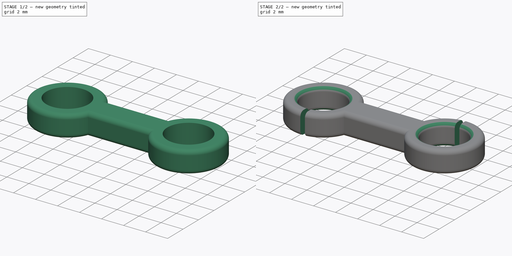
[diagram: build sequence overview — one tinted view per stage of 2, left to right]
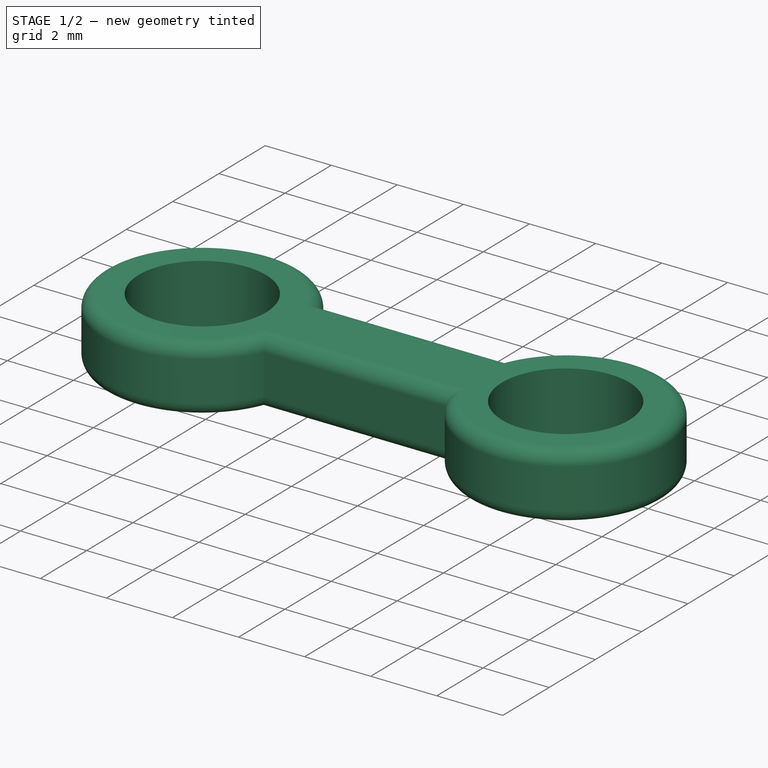
[diagram: stage 1 of 2 — iso view after this stage's code; geometry added in this stage tinted green]
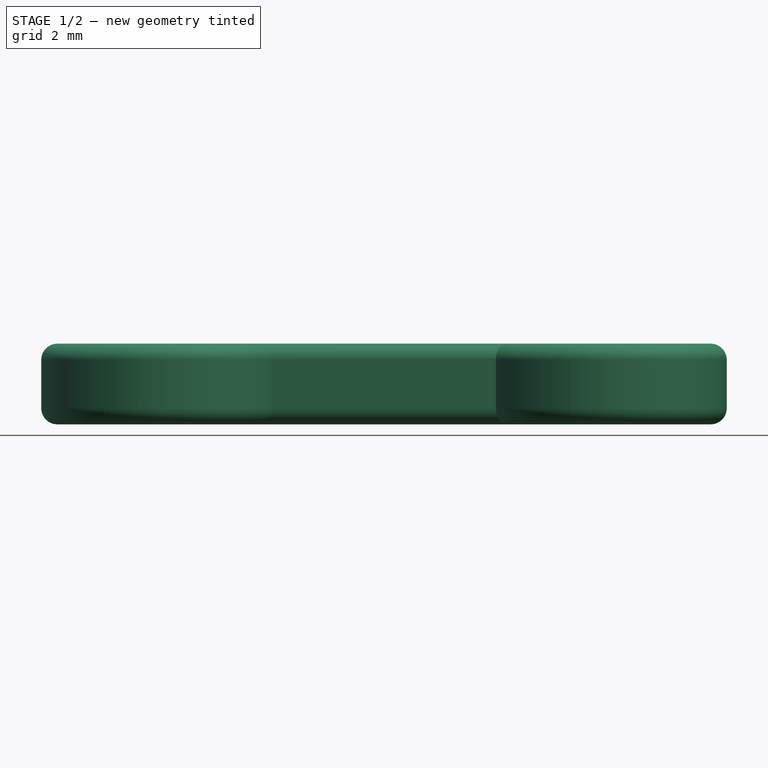
[diagram: stage 1 of 2 — front view after this stage's code; geometry added in this stage tinted green]
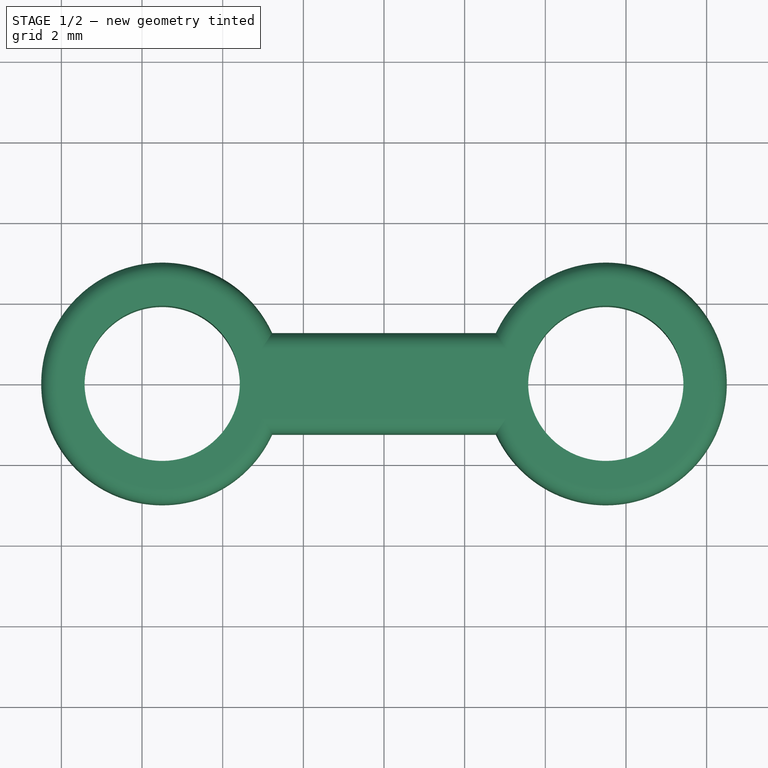
[diagram: stage 1 of 2 — top view after this stage's code; geometry added in this stage tinted green]
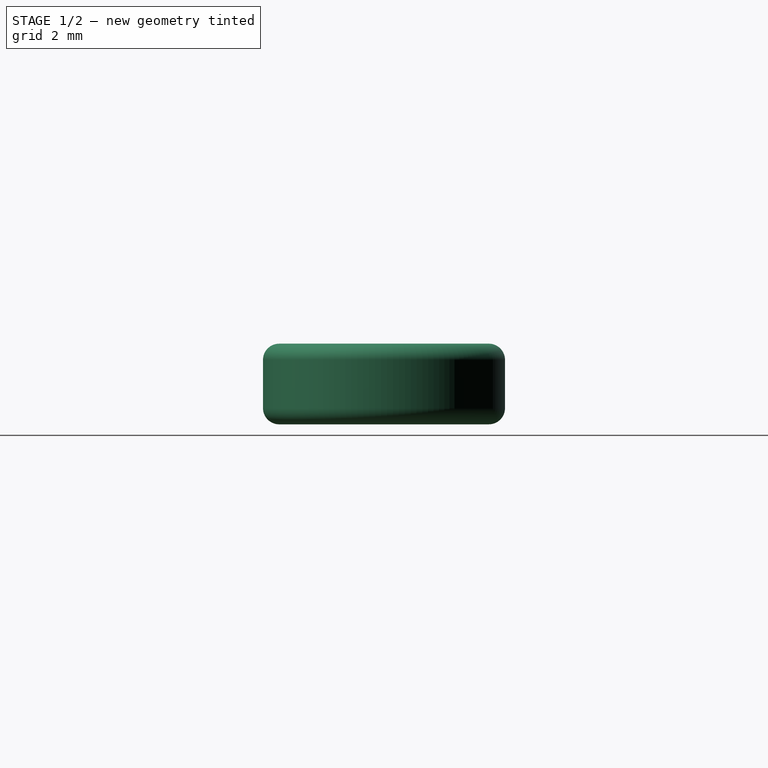
[diagram: stage 1 of 2 — right view after this stage's code; geometry added in this stage tinted green]
FCSTD DOCUMENT  (FreeCAD 1.0R39285 (Git))
Label: rc_helicopter
License: All rights reserved
objects: Sketcher::SketchObject×2, PartDesign::Fillet×2, App::VarSet×1, PartDesign::Pad×1, PartDesign::Pocket×1, PartDesign::Body×1
note: 17 computed .brp shape members not serialized (recipe doc carries the construction recipe); baked Part::Feature solids carry a one-line shape summary decoded from their .brp

FEATURE [Sketcher::SketchObject] Sketch
  ArcFitTolerance = 1e-06
  AttachmentSupport = -> [XY_Plane]
  FullyConstrained = true
  MakeInternals = false
  MapMode = 5
  expr: Constraints[13] = VarSet.centri
  expr: Constraints[14] = VarSet.centri / 2
  sketch-geometry (7):
    g0: LineSegment StartX=-2.77282 StartY=-1.25 StartZ=0 EndX=2.77282 EndY=-1.25 EndZ=0
    g1: LineSegment StartX=2.77282 StartY=1.25 StartZ=0 EndX=-2.77282 EndY=1.25 EndZ=0
    g2: GeomPoint [constr] X=0 Y=0 Z=0
    g3: ArcOfCircle CenterX=5.5 CenterY=0 CenterZ=0 NormalX=0 NormalY=0 NormalZ=1 AngleXU=0 Radius=3 StartAngle=3.57137 EndAngle=8.995
    g4: ArcOfCircle CenterX=-5.5 CenterY=0 CenterZ=0 NormalX=0 NormalY=0 NormalZ=1 AngleXU=0 Radius=3 StartAngle=0.429775 EndAngle=5.85341
    g5: Circle CenterX=-5.5 CenterY=0 CenterZ=0 NormalX=0 NormalY=0 NormalZ=1 AngleXU=0 Radius=1.925
    g6: Circle CenterX=5.5 CenterY=0 CenterZ=0 NormalX=0 NormalY=0 NormalZ=1 AngleXU=0 Radius=1.925
  constraints (19):
    c: Horizontal(g0)
    c: Horizontal(g1)
    c: Coincident(g2,g-1)
    c: PointOnObject(g3,g-1)
    c: PointOnObject(g4,g-1)
    c: Diameter(g3) = 6
    c: Diameter(g4) = 6
    c: Vertical(g1,g0)
    c: DistanceY(g0,g1) = 2.5
    c: Coincident(g5,g4)
    c: Coincident(g6,g3)
    c: Diameter(g6) = 3.85
    c: Diameter(g5) = 3.85
    c: DistanceX(g4,g3) = 11
    c: Distance(g4,g-2) = 5.5
    c: Coincident(g4,g0)
    c: Coincident(g4,g1)
    c: Coincident(g3,g1)
    c: Coincident(g3,g0)
FEATURE [App::VarSet] VarSet  label="rotorpartVarSet"
  centri = 11
FEATURE [PartDesign::Pad] Pad
  Direction = (0,0,1)
  Length = 2
  Length2 = 10
  Midplane = true
  Profile = -> Sketch
  ReferenceAxis = -> Sketch [N_Axis]
  Refine = true
  Suppressed = false
  Type = 0
FEATURE [PartDesign::Fillet] Fillet
  Base = -> Pad [Edge7,Edge4,Edge10,Edge12,Edge3,Edge6,Edge9,Edge11]
  BaseFeature = -> Pad
  Radius = 0.4
  Refine = true
  SupportTransform = false
  Suppressed = false
  UseAllEdges = false
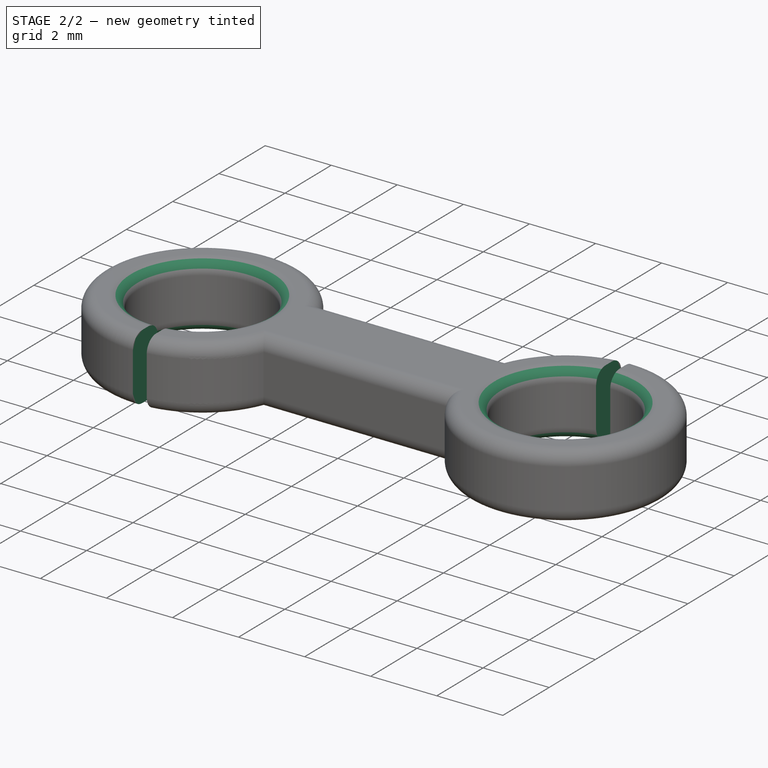
[diagram: stage 2 of 2 — iso view after this stage's code; geometry added in this stage tinted green]
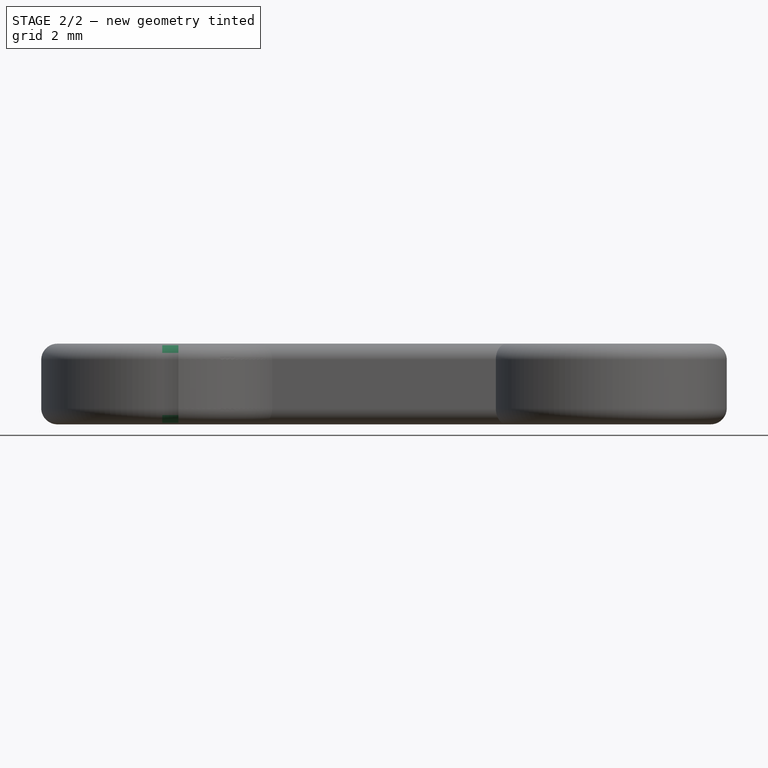
[diagram: stage 2 of 2 — front view after this stage's code; geometry added in this stage tinted green]
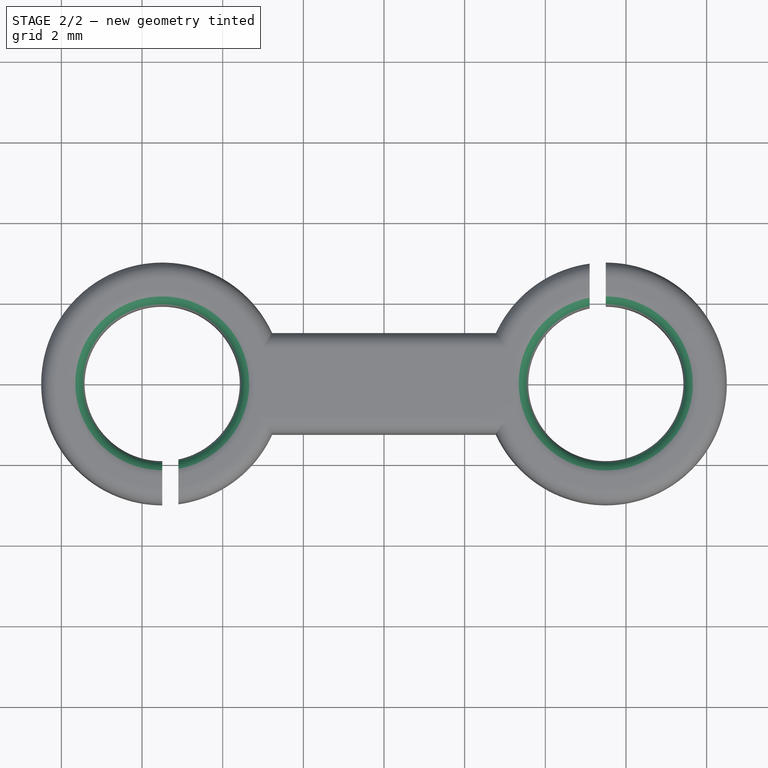
[diagram: stage 2 of 2 — top view after this stage's code; geometry added in this stage tinted green]
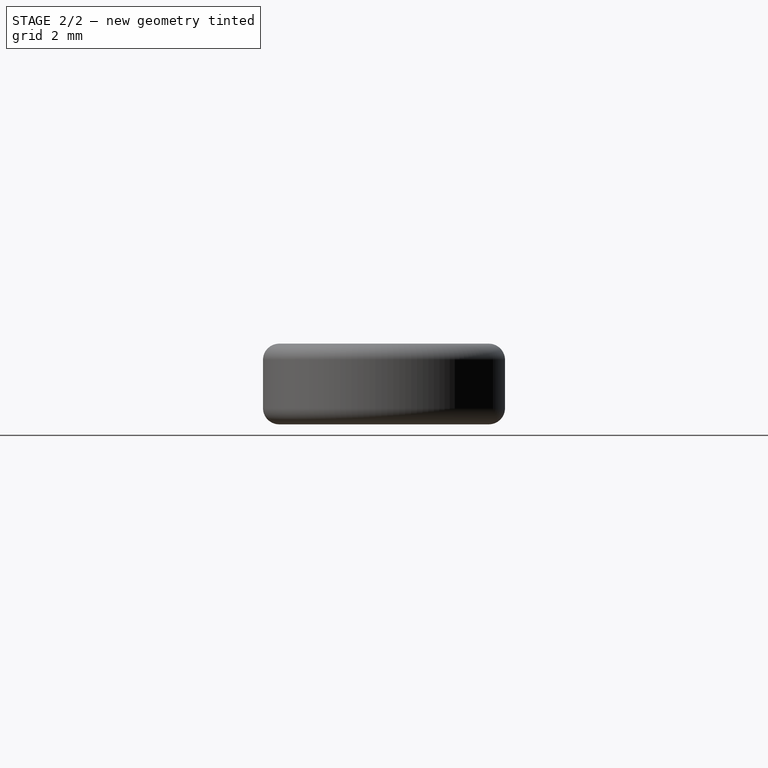
[diagram: stage 2 of 2 — right view after this stage's code; geometry added in this stage tinted green]
FEATURE [PartDesign::Fillet] Fillet001
  Base = -> Fillet [Edge30,Edge25,Edge26,Edge31]
  BaseFeature = -> Fillet
  Radius = 0.4
  Refine = true
  SupportTransform = false
  Suppressed = false
  UseAllEdges = false
FEATURE [Sketcher::SketchObject] Sketch001
  ArcFitTolerance = 1e-06
  AttachmentSupport = -> [Fillet001]
  ExternalGeometry = -> [Fillet001]
  FullyConstrained = false
  MakeInternals = false
  MapMode = 5
  Placement = pos=(0,0,1) rot=(0,0,1;0rad)
  sketch-geometry (9):
    g0: LineSegment [constr] StartX=-5.5 StartY=1.925 StartZ=0 EndX=-5.5 EndY=-1.925 EndZ=0
    g1: LineSegment StartX=-5.5 StartY=0 StartZ=0 EndX=-5.5 EndY=-3.4 EndZ=0
    g2: LineSegment StartX=-5.5 StartY=-3.4 StartZ=0 EndX=-5.1 EndY=-3.4 EndZ=0
    g3: LineSegment StartX=-5.1 StartY=-3.4 StartZ=0 EndX=-5.1 EndY=0 EndZ=0
    g4: LineSegment StartX=-5.1 StartY=0 StartZ=0 EndX=-5.5 EndY=0 EndZ=0
    g5: LineSegment StartX=5.1 StartY=3.4 StartZ=0 EndX=5.1 EndY=0 EndZ=0
    g6: LineSegment StartX=5.5 StartY=0 StartZ=0 EndX=5.5 EndY=3.4 EndZ=0
    g7: LineSegment StartX=5.1 StartY=0 StartZ=0 EndX=5.5 EndY=0 EndZ=0
    g8: LineSegment StartX=5.5 StartY=3.4 StartZ=0 EndX=5.1 EndY=3.4 EndZ=0
  constraints (23):
    c: PointOnObject(g0,g-3)
    c: PointOnObject(g0,g-3)
    c: Vertical(g0)
    c: PointOnObject(g-3,g0)
    c: Coincident(g1,g2)
    c: Coincident(g2,g3)
    c: Coincident(g3,g4)
    c: Coincident(g4,g1)
    c: Vertical(g1)
    c: Vertical(g3)
    c: Horizontal(g2)
    c: Horizontal(g4)
    c: Coincident(g1,g-3)
    c: DistanceX(g4,g4) = 0.4
    c: DistanceY(g3,g3) = 3.4
    c: Coincident(g6,g8)
    c: Coincident(g8,g5)
    c: Coincident(g5,g7)
    c: Coincident(g7,g6)
    c: Vertical(g6)
    c: Vertical(g5)
    c: Horizontal(g8)
    c: Horizontal(g7)
FEATURE [PartDesign::Pocket] Pocket
  BaseFeature = -> Fillet001
  Direction = (0,0,-1)
  Length = 5
  Length2 = 5
  Profile = -> Sketch001
  ReferenceAxis = -> Sketch001 [N_Axis]
  Refine = true
  Suppressed = false
  Type = 1
FEATURE [PartDesign::Body] Body  label="rotorpart"
  AllowCompound = false
  Group = -> [Sketch,Pad,Fillet,Fillet001,VarSet,Sketch001,Pocket]
  Origin = -> Origin
  Tip = -> Pocket
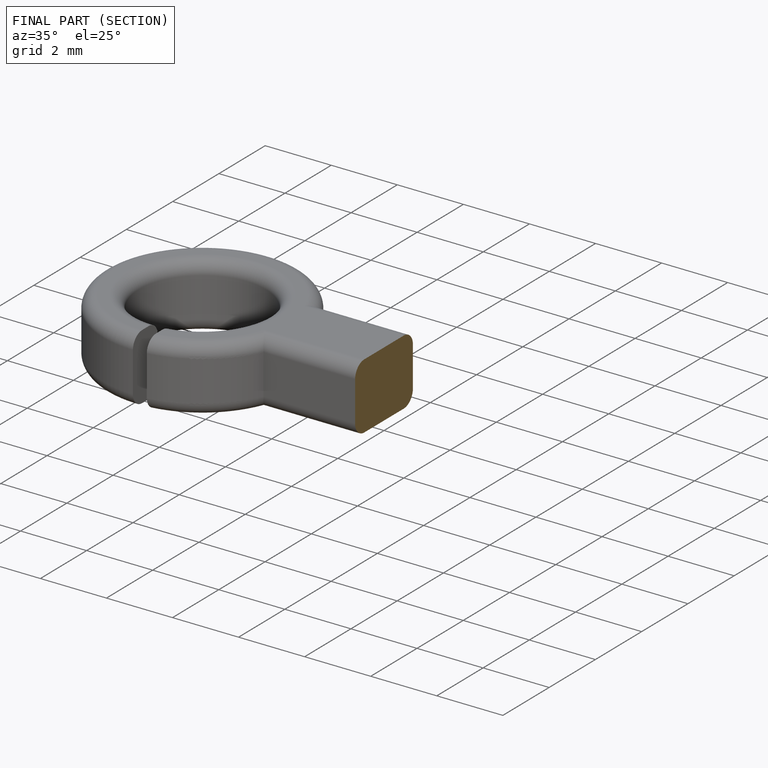
[diagram: finished part — half-section view (interior)]
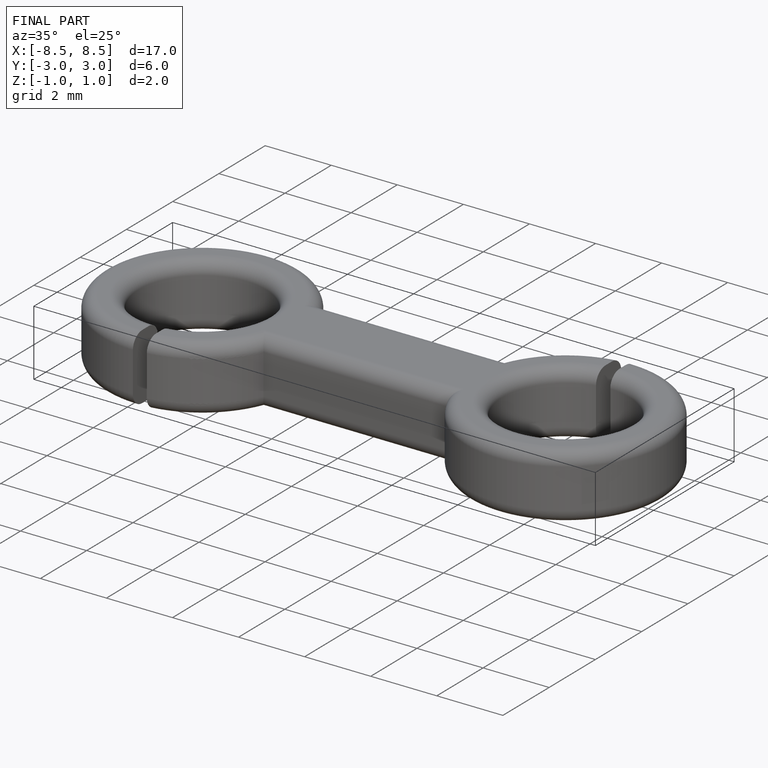
[diagram: finished part — iso view with bounding-box wireframe]
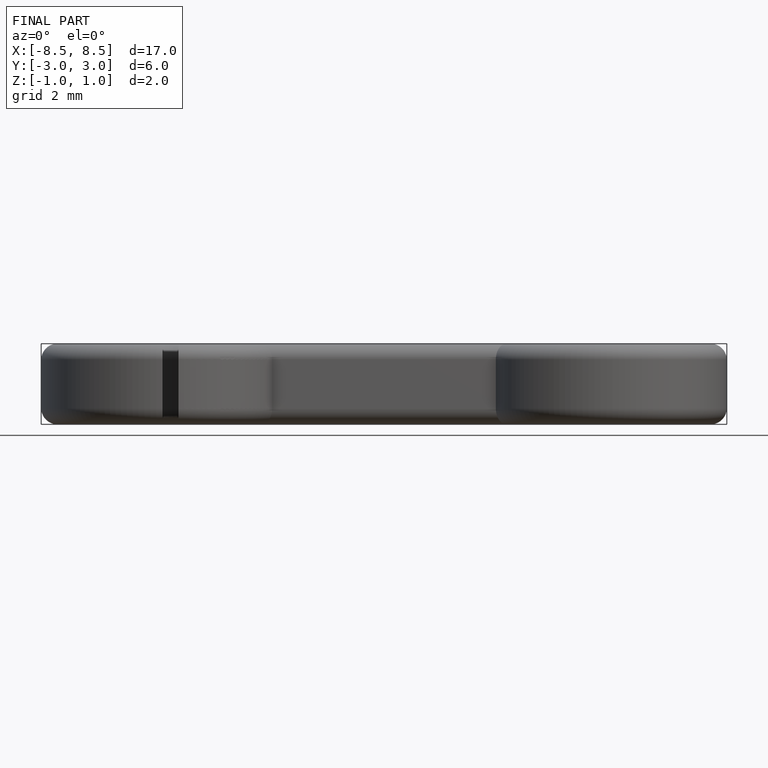
[diagram: finished part — front view with bounding-box wireframe]
